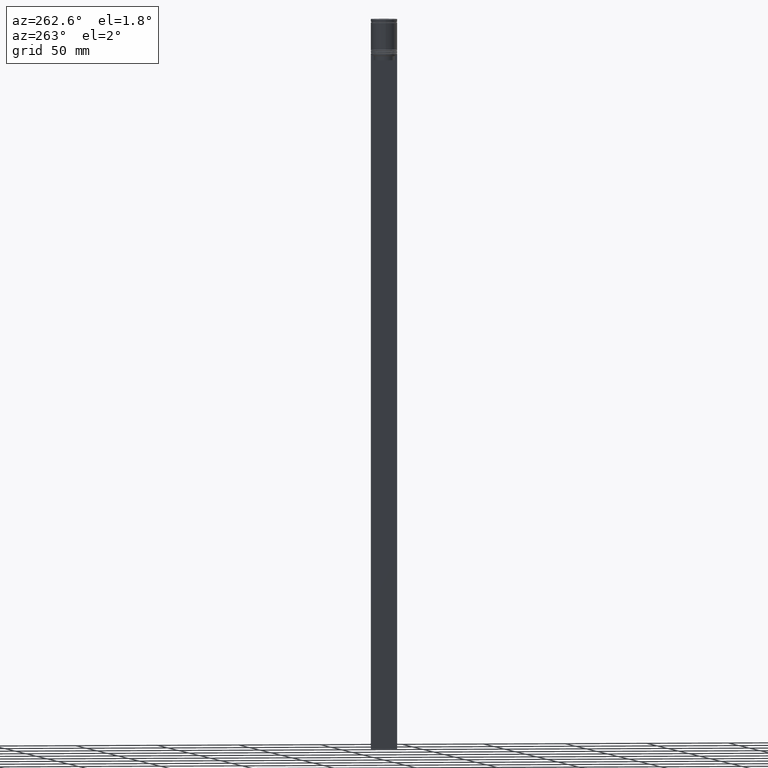
[diagram: clean part render]
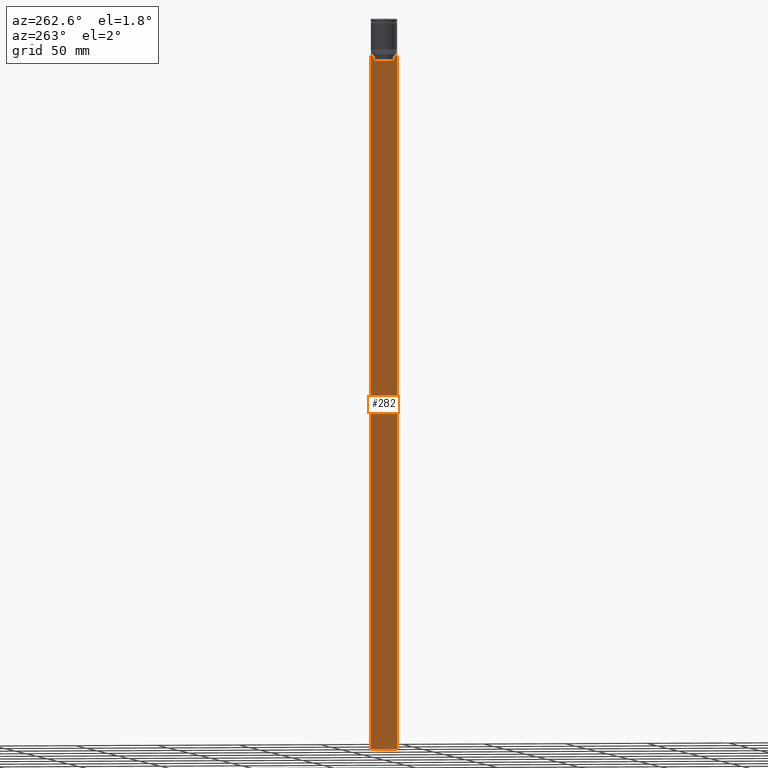
[diagram: same view with one face highlighted and labeled with its STEP entity id]
A machine part, auxiliary view. The second image highlights one B-rep face of the part: STEP entity #282.
In plain terms, the highlighted planar face has unit normal (-1, 0, 0).
Its self-contained STEP definition (entity closure, byte-faithful):
#3 = CARTESIAN_POINT ( 'NONE',  ( -0.4999999999999998890, -6.547597841511251460, -22.33335192438651973 ) ) ;
#7 = DIRECTION ( 'NONE',  ( -1.000000000000000000, 0.000000000000000000, 0.000000000000000000 ) ) ;
#41 = B_SPLINE_CURVE_WITH_KNOTS ( 'NONE', 3,
 ( #1169, #1213, #1007, #578 ),
 .UNSPECIFIED., .F., .F.,
 ( 4, 4 ),
 ( 0.01172465562756039477, 0.01243276816391824212 ),
 .UNSPECIFIED. ) ;
#47 = LINE ( 'NONE', #1799, #1398 ) ;
#79 = DIRECTION ( 'NONE',  ( 0.000000000000000000, 1.000000000000000000, 0.000000000000000000 ) ) ;
#90 = ORIENTED_EDGE ( 'NONE', *, *, #1969, .F. ) ;
#112 = LINE ( 'NONE', #917, #204 ) ;
#119 = ORIENTED_EDGE ( 'NONE', *, *, #923, .F. ) ;
#124 = ORIENTED_EDGE ( 'NONE', *, *, #180, .F. ) ;
#136 = LINE ( 'NONE', #1587, #570 ) ;
#176 = VERTEX_POINT ( 'NONE', #1971 ) ;
#180 = EDGE_CURVE ( 'NONE', #841, #1907, #41, .T. ) ;
#204 = VECTOR ( 'NONE', #893, 1000.000000000000000 ) ;
#240 = ORIENTED_EDGE ( 'NONE', *, *, #694, .F. ) ;
#255 = CARTESIAN_POINT ( 'NONE',  ( -0.4999999999999998890, 7.999999999999996447, -22.00000000000000000 ) ) ;
#276 = CARTESIAN_POINT ( 'NONE',  ( -0.4999999999999998890, -8.000000000000003553, -22.00000000000000000 ) ) ;
#282 = ADVANCED_FACE ( 'NONE', ( #2085 ), #416, .T. ) ;
#293 = VERTEX_POINT ( 'NONE', #255 ) ;
#325 = LINE ( 'NONE', #758, #1074 ) ;
#416 = PLANE ( 'NONE',  #1173 ) ;
#417 = CARTESIAN_POINT ( 'NONE',  ( -0.4999999999999998890, -8.000000000000003553, -444.0000000000000000 ) ) ;
#426 = VERTEX_POINT ( 'NONE', #1631 ) ;
#458 = CARTESIAN_POINT ( 'NONE',  ( -0.4999999999999998890, -8.000000000000003553, -22.00000000000000000 ) ) ;
#462 = ORIENTED_EDGE ( 'NONE', *, *, #1182, .F. ) ;
#476 = CARTESIAN_POINT ( 'NONE',  ( -0.4999999999999998890, -7.884161337770813738, -22.00000000000000000 ) ) ;
#500 = CARTESIAN_POINT ( 'NONE',  ( -0.4999999999999998890, -6.881860213634107382, -22.00000000000000000 ) ) ;
#519 = EDGE_CURVE ( 'NONE', #293, #557, #528, .T. ) ;
#528 = LINE ( 'NONE', #1663, #1397 ) ;
#553 = CARTESIAN_POINT ( 'NONE',  ( -0.4999999999999998890, 6.380438856379714530, -22.50000000000000000 ) ) ;
#557 = VERTEX_POINT ( 'NONE', #1991 ) ;
#570 = VECTOR ( 'NONE', #1116, 1000.000000000000000 ) ;
#578 = CARTESIAN_POINT ( 'NONE',  ( -0.4999999999999998890, 6.380438856379714530, -22.50000000000000000 ) ) ;
#614 = ORIENTED_EDGE ( 'NONE', *, *, #1499, .F. ) ;
#633 = VECTOR ( 'NONE', #750, 1000.000000000000000 ) ;
#638 = CARTESIAN_POINT ( 'NONE',  ( -0.4999999999999998890, 7.884161337770813738, -22.00000000000000000 ) ) ;
#655 = DIRECTION ( 'NONE',  ( 0.000000000000000000, 0.000000000000000000, 1.000000000000000000 ) ) ;
#657 = EDGE_CURVE ( 'NONE', #1775, #732, #1218, .T. ) ;
#681 = EDGE_CURVE ( 'NONE', #176, #1323, #873, .T. ) ;
#692 = ORIENTED_EDGE ( 'NONE', *, *, #772, .F. ) ;
#694 = EDGE_CURVE ( 'NONE', #1352, #426, #325, .T. ) ;
#713 = B_SPLINE_CURVE_WITH_KNOTS ( 'NONE', 3,
 ( #1477, #3, #1455, #1142 ),
 .UNSPECIFIED., .F., .F.,
 ( 4, 4 ),
 ( 0.02996184199614752505, 0.03067452609193706964 ),
 .UNSPECIFIED. ) ;
#732 = VERTEX_POINT ( 'NONE', #476 ) ;
#750 = DIRECTION ( 'NONE',  ( 0.000000000000000000, -1.000000000000000000, 0.000000000000000000 ) ) ;
#758 = CARTESIAN_POINT ( 'NONE',  ( -0.4999999999999998890, -8.000000000000003553, -5.968780458118602361 ) ) ;
#772 = EDGE_CURVE ( 'NONE', #1907, #1988, #136, .T. ) ;
#830 = CARTESIAN_POINT ( 'NONE',  ( -0.4999999999999998890, 6.881860213634107382, -22.00000000000000000 ) ) ;
#841 = VERTEX_POINT ( 'NONE', #830 ) ;
#873 = LINE ( 'NONE', #1512, #900 ) ;
#893 = DIRECTION ( 'NONE',  ( 0.000000000000000000, -1.000000000000000000, 0.000000000000000000 ) ) ;
#900 = VECTOR ( 'NONE', #1841, 1000.000000000000000 ) ;
#906 = CARTESIAN_POINT ( 'NONE',  ( -0.4999999999999998890, 6.380438856379714530, -24.99999999999999645 ) ) ;
#916 = ORIENTED_EDGE ( 'NONE', *, *, #519, .T. ) ;
#917 = CARTESIAN_POINT ( 'NONE',  ( -0.4999999999999998890, 6.400000000000006573, -24.99999999999999645 ) ) ;
#923 = EDGE_CURVE ( 'NONE', #732, #1352, #47, .T. ) ;
#936 = CARTESIAN_POINT ( 'NONE',  ( -0.4999999999999998890, -8.000000000000003553, -22.00000000000000000 ) ) ;
#942 = VECTOR ( 'NONE', #1386, 1000.000000000000000 ) ;
#1007 = CARTESIAN_POINT ( 'NONE',  ( -0.4999999999999998890, 6.547597841304917843, -22.33335192459222185 ) ) ;
#1010 = VECTOR ( 'NONE', #79, 1000.000000000000000 ) ;
#1074 = VECTOR ( 'NONE', #1412, 1000.000000000000000 ) ;
#1116 = DIRECTION ( 'NONE',  ( 0.000000000000000000, 0.000000000000000000, -1.000000000000000000 ) ) ;
#1124 = ORIENTED_EDGE ( 'NONE', *, *, #1309, .F. ) ;
#1142 = CARTESIAN_POINT ( 'NONE',  ( -0.4999999999999998890, -6.881860213634107382, -22.00000000000000000 ) ) ;
#1169 = CARTESIAN_POINT ( 'NONE',  ( -0.4999999999999998890, 6.881860213634107382, -22.00000000000000000 ) ) ;
#1173 = AXIS2_PLACEMENT_3D ( 'NONE', #1579, #7, #655 ) ;
#1182 = EDGE_CURVE ( 'NONE', #293, #1245, #2035, .T. ) ;
#1213 = CARTESIAN_POINT ( 'NONE',  ( -0.4999999999999998890, 6.714736947114699817, -22.16668390704818492 ) ) ;
#1218 = LINE ( 'NONE', #276, #633 ) ;
#1245 = VERTEX_POINT ( 'NONE', #638 ) ;
#1309 = EDGE_CURVE ( 'NONE', #1323, #1775, #713, .T. ) ;
#1323 = VERTEX_POINT ( 'NONE', #1603 ) ;
#1352 = VERTEX_POINT ( 'NONE', #1930 ) ;
#1386 = DIRECTION ( 'NONE',  ( 0.000000000000000000, -1.000000000000000000, 0.000000000000000000 ) ) ;
#1397 = VECTOR ( 'NONE', #1491, 1000.000000000000000 ) ;
#1398 = VECTOR ( 'NONE', #1942, 1000.000000000000000 ) ;
#1410 = DIRECTION ( 'NONE',  ( 0.000000000000000000, -1.000000000000000000, 0.000000000000000000 ) ) ;
#1412 = DIRECTION ( 'NONE',  ( 0.000000000000000000, 0.000000000000000000, -1.000000000000000000 ) ) ;
#1455 = CARTESIAN_POINT ( 'NONE',  ( -0.4999999999999998890, -6.714736947306000125, -22.16668390685738643 ) ) ;
#1477 = CARTESIAN_POINT ( 'NONE',  ( -0.4999999999999998890, -6.380438856379714530, -22.50000000000000000 ) ) ;
#1480 = ORIENTED_EDGE ( 'NONE', *, *, #681, .F. ) ;
#1491 = DIRECTION ( 'NONE',  ( 0.000000000000000000, 0.000000000000000000, -1.000000000000000000 ) ) ;
#1499 = EDGE_CURVE ( 'NONE', #426, #557, #1856, .T. ) ;
#1500 = ORIENTED_EDGE ( 'NONE', *, *, #657, .F. ) ;
#1512 = CARTESIAN_POINT ( 'NONE',  ( -0.4999999999999998890, -6.380438856379714530, 0.000000000000000000 ) ) ;
#1543 = VECTOR ( 'NONE', #1410, 1000.000000000000000 ) ;
#1579 = CARTESIAN_POINT ( 'NONE',  ( -0.4999999999999998890, -8.000000000000003553, -5.968780458118602361 ) ) ;
#1587 = CARTESIAN_POINT ( 'NONE',  ( -0.4999999999999998890, 6.380438856379714530, 0.000000000000000000 ) ) ;
#1603 = CARTESIAN_POINT ( 'NONE',  ( -0.4999999999999998890, -6.380438856379714530, -22.50000000000000000 ) ) ;
#1631 = CARTESIAN_POINT ( 'NONE',  ( -0.4999999999999998890, -8.000000000000003553, -444.0000000000000000 ) ) ;
#1663 = CARTESIAN_POINT ( 'NONE',  ( -0.4999999999999998890, 7.999999999999996447, -5.968780458118602361 ) ) ;
#1700 = EDGE_LOOP ( 'NONE', ( #124, #1840, #462, #916, #614, #240, #119, #1500, #1124, #1480, #90, #692 ) ) ;
#1775 = VERTEX_POINT ( 'NONE', #500 ) ;
#1799 = CARTESIAN_POINT ( 'NONE',  ( -0.4999999999999998890, -8.000000000000003553, -22.00000000000000000 ) ) ;
#1840 = ORIENTED_EDGE ( 'NONE', *, *, #1979, .F. ) ;
#1841 = DIRECTION ( 'NONE',  ( -0.000000000000000000, -0.000000000000000000, 1.000000000000000000 ) ) ;
#1856 = LINE ( 'NONE', #417, #1010 ) ;
#1907 = VERTEX_POINT ( 'NONE', #553 ) ;
#1930 = CARTESIAN_POINT ( 'NONE',  ( -0.4999999999999998890, -8.000000000000003553, -22.00000000000000000 ) ) ;
#1942 = DIRECTION ( 'NONE',  ( 0.000000000000000000, -1.000000000000000000, 0.000000000000000000 ) ) ;
#1969 = EDGE_CURVE ( 'NONE', #1988, #176, #112, .T. ) ;
#1971 = CARTESIAN_POINT ( 'NONE',  ( -0.4999999999999998890, -6.380438856379714530, -24.99999999999999645 ) ) ;
#1979 = EDGE_CURVE ( 'NONE', #1245, #841, #2063, .T. ) ;
#1988 = VERTEX_POINT ( 'NONE', #906 ) ;
#1991 = CARTESIAN_POINT ( 'NONE',  ( -0.4999999999999998890, 7.999999999999996447, -444.0000000000000000 ) ) ;
#2035 = LINE ( 'NONE', #458, #1543 ) ;
#2063 = LINE ( 'NONE', #936, #942 ) ;
#2085 = FACE_OUTER_BOUND ( 'NONE', #1700, .T. ) ;